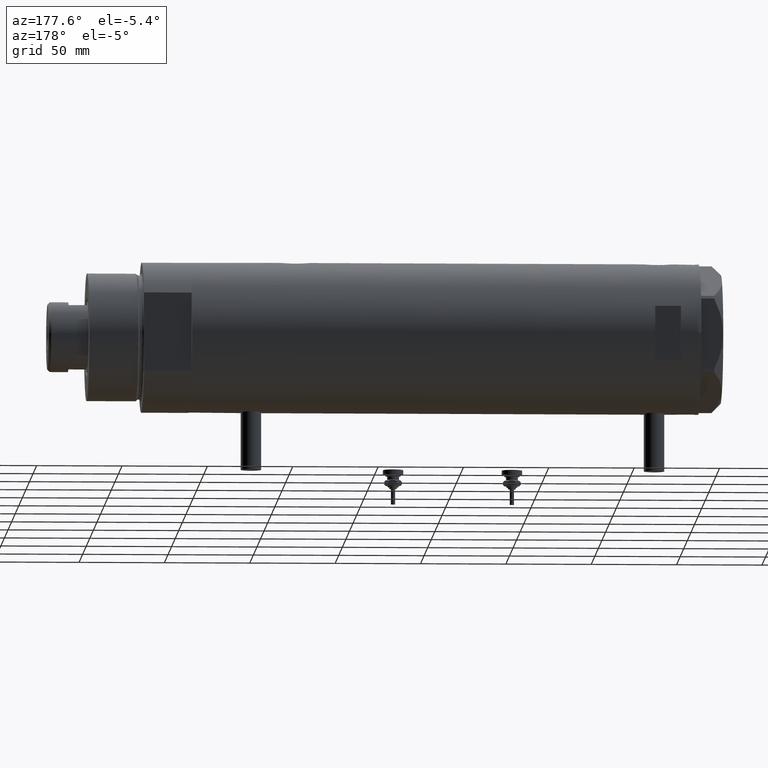
[diagram: clean part render]
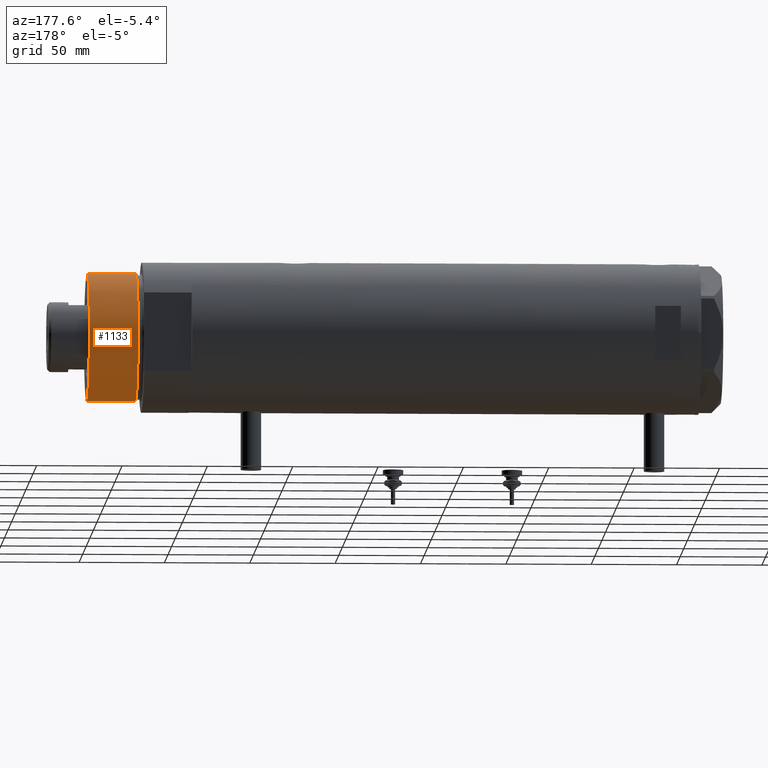
[diagram: same view with one face highlighted and labeled with its STEP entity id]
A machine part, auxiliary view. The second image highlights one B-rep face of the part: STEP entity #1133.
In plain terms, the highlighted cylindrical surface (partial cylindrical patch) has radius 37.5 mm, axis along (-1, -0, 0).
Its self-contained STEP definition (entity closure, byte-faithful):
#329 = VERTEX_POINT ( 'NONE', #5760 ) ;
#661 = EDGE_LOOP ( 'NONE', ( #5520, #2914, #5768, #3734 ) ) ;
#810 = CARTESIAN_POINT ( 'NONE',  ( 0.000000000000000000, 0.000000000000000000, 31.27384048104054415 ) ) ;
#1004 = LINE ( 'NONE', #3476, #4723 ) ;
#1133 = ADVANCED_FACE ( 'NONE', ( #3489 ), #1957, .T. ) ;
#1319 = AXIS2_PLACEMENT_3D ( 'NONE', #810, #3586, #4578 ) ;
#1443 = AXIS2_PLACEMENT_3D ( 'NONE', #5939, #5366, #3061 ) ;
#1507 = CARTESIAN_POINT ( 'NONE',  ( 37.50000000000000711, 4.592425496802575156E-15, 31.27384048104054415 ) ) ;
#1957 = CYLINDRICAL_SURFACE ( 'NONE', #4705, 37.50000000000000711 ) ;
#2012 = CARTESIAN_POINT ( 'NONE',  ( -37.50000000000000711, 0.000000000000000000, 59.89999999999999147 ) ) ;
#2051 = EDGE_CURVE ( 'NONE', #3681, #329, #4042, .T. ) ;
#2234 = CARTESIAN_POINT ( 'NONE',  ( -37.50000000000000711, 0.000000000000000000, 31.27384048104054415 ) ) ;
#2491 = EDGE_CURVE ( 'NONE', #329, #5151, #4233, .T. ) ;
#2804 = DIRECTION ( 'NONE',  ( -0.000000000000000000, -0.000000000000000000, -1.000000000000000000 ) ) ;
#2865 = DIRECTION ( 'NONE',  ( -1.000000000000000000, 0.000000000000000000, 0.000000000000000000 ) ) ;
#2914 = ORIENTED_EDGE ( 'NONE', *, *, #5290, .T. ) ;
#3061 = DIRECTION ( 'NONE',  ( 1.000000000000000000, 0.000000000000000000, 0.000000000000000000 ) ) ;
#3183 = EDGE_CURVE ( 'NONE', #4779, #5151, #5217, .T. ) ;
#3476 = CARTESIAN_POINT ( 'NONE',  ( 37.50000000000000711, 4.592425496802575156E-15, 59.89999999999999147 ) ) ;
#3489 = FACE_OUTER_BOUND ( 'NONE', #661, .T. ) ;
#3586 = DIRECTION ( 'NONE',  ( -0.000000000000000000, -0.000000000000000000, 1.000000000000000000 ) ) ;
#3681 = VERTEX_POINT ( 'NONE', #3740 ) ;
#3734 = ORIENTED_EDGE ( 'NONE', *, *, #2491, .F. ) ;
#3740 = CARTESIAN_POINT ( 'NONE',  ( 37.50000000000000711, 4.592425496802575156E-15, 59.89999999999999147 ) ) ;
#3808 = DIRECTION ( 'NONE',  ( -0.000000000000000000, -0.000000000000000000, -1.000000000000000000 ) ) ;
#3888 = DIRECTION ( 'NONE',  ( -0.000000000000000000, -0.000000000000000000, -1.000000000000000000 ) ) ;
#4042 = CIRCLE ( 'NONE', #1443, 37.50000000000000711 ) ;
#4079 = CARTESIAN_POINT ( 'NONE',  ( 0.000000000000000000, 0.000000000000000000, 59.89999999999999147 ) ) ;
#4233 = LINE ( 'NONE', #2012, #4897 ) ;
#4578 = DIRECTION ( 'NONE',  ( 1.000000000000000000, 0.000000000000000000, 0.000000000000000000 ) ) ;
#4705 = AXIS2_PLACEMENT_3D ( 'NONE', #4079, #2804, #2865 ) ;
#4723 = VECTOR ( 'NONE', #3888, 1000.000000000000000 ) ;
#4779 = VERTEX_POINT ( 'NONE', #1507 ) ;
#4897 = VECTOR ( 'NONE', #3808, 1000.000000000000000 ) ;
#5151 = VERTEX_POINT ( 'NONE', #2234 ) ;
#5217 = CIRCLE ( 'NONE', #1319, 37.50000000000000711 ) ;
#5290 = EDGE_CURVE ( 'NONE', #3681, #4779, #1004, .T. ) ;
#5366 = DIRECTION ( 'NONE',  ( 0.000000000000000000, 0.000000000000000000, 1.000000000000000000 ) ) ;
#5520 = ORIENTED_EDGE ( 'NONE', *, *, #2051, .F. ) ;
#5760 = CARTESIAN_POINT ( 'NONE',  ( -37.50000000000000711, 0.000000000000000000, 59.89999999999999147 ) ) ;
#5768 = ORIENTED_EDGE ( 'NONE', *, *, #3183, .T. ) ;
#5939 = CARTESIAN_POINT ( 'NONE',  ( 0.000000000000000000, 0.000000000000000000, 59.89999999999999147 ) ) ;